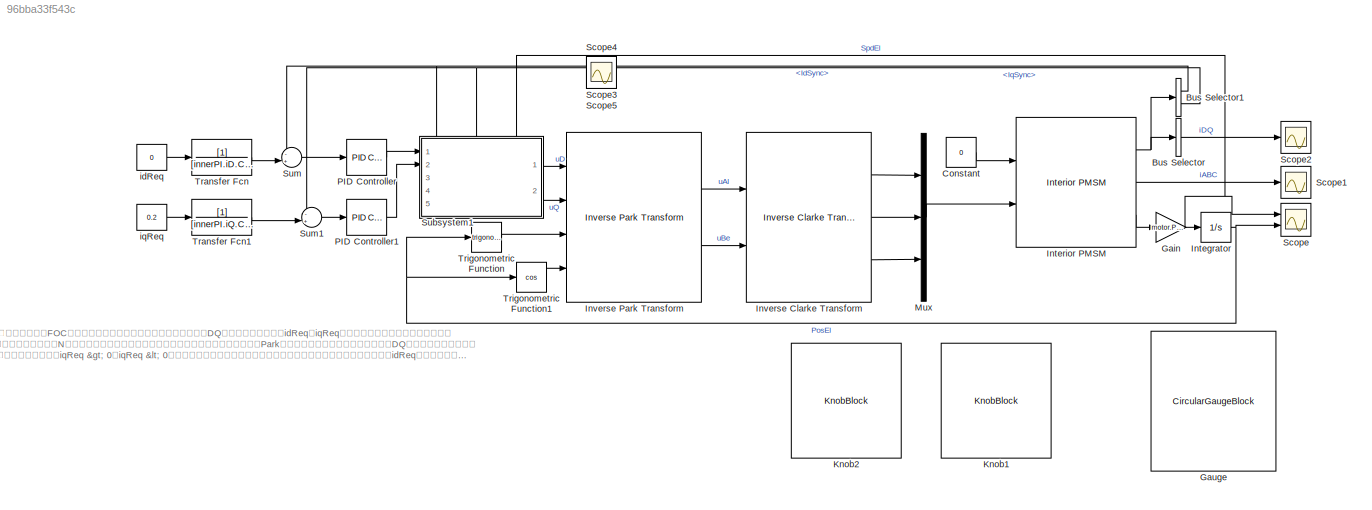
MODEL slx_96bba33f543c
KIND model
CONFIG AbsTol = auto
CONFIG EnableMultiTasking = off
CONFIG FixedStep = Ts
CONFIG InitFcn = FOC_basic;
CONFIG MaxStep = 0.0005
CONFIG MinStep = auto
CONFIG RelTol = 1e-3
CONFIG SampleTimeConstraint = Unconstrained
CONFIG SolverName = FixedStepAuto
CONFIG StartTime = 0.0
CONFIG StopTime = 1
BLOCK [BusSelector] Bus Selector
  OutputAsBus = on
  OutputSignals = IdSync,IqSync
  Ports = [1, 1]
BLOCK [BusSelector] Bus Selector1
  OutputSignals = IdSync,IqSync
  Ports = [1, 2]
BLOCK [Constant] Constant
  Value = 0
BLOCK [Gain] Gain
  Gain = motor.Prs
BLOCK [CircularGaugeBlock] Gauge
  ScaleMax = 3.14
  ScaleMin = -3.14
  TickInterval = 1.57
BLOCK [Integrator] Integrator
  Ports = [1, 1]
  WrapState = on
BLOCK [Reference] Interior PMSM  REF=autolibpmsminterior/Interior PMSM
  Ports = [2, 3]
  SourceBlock = autolibpmsminterior/Interior PMSM
  SourceProductBaseCode = PW,MT,UV,VE,VP
  SourceType = Interior PMSM
BLOCK [Reference] Inverse Clarke Transform  REF=mcbcontrolslib/Inverse Clarke Transform
  Ports = [2, 3]
  SourceBlock = mcbcontrolslib/Inverse Clarke Transform
  SourceProductBaseCode = MT
  SourceType = Inverse Clarke Transform
BLOCK [Reference] Inverse Park Transform  REF=mcbcontrolslib/Inverse Park Transform
  Ports = [4, 2]
  SourceBlock = mcbcontrolslib/Inverse Park Transform
  SourceProductBaseCode = MT
  SourceType = Inverse Park Transform
BLOCK [KnobBlock] Knob1
  ScaleMax = 1
  ScaleMin = -1
BLOCK [KnobBlock] Knob2
  ScaleMax = 1
  ScaleMin = -1
BLOCK [Mux] Mux
  DisplayOption = bar
  Inputs = 3
  Ports = [3, 1]
BLOCK [Reference] PID Controller  REF=pid_lib/PID Controller
  Ports = [1, 1]
  SourceBlock = pid_lib/PID Controller
  SourceProductBaseCode = SL
  SourceType = PID 1dof
BLOCK [Reference] PID Controller1  REF=pid_lib/PID Controller
  Ports = [1, 1]
  SourceBlock = pid_lib/PID Controller
  SourceProductBaseCode = SL
  SourceType = PID 1dof
BLOCK [Scope] Scope
  Floating = off
  NumInputPorts = 2
  Ports = [2]
  ScopeSpecificationString = Simulink.scopes.TimeScopeBlockCfg('CurrentConfiguration', extmgr.ConfigurationSet(extmgr.Configuration('Core','General UI',true),extmgr.Configuration('Core','Source UI',true),extmgr.Configuration('Sources','WiredSimulink',true),extmgr.Configuration('Visuals','Time Domain',true,'SerializedDisplays',{struct('MinYLimReal','-0.67157','MaxYLimReal','6.04411','YLabelReal','','MinYLimMag','0.00000','MaxY...<+2038ch>
BLOCK [Scope] Scope1
  Floating = off
  NumInputPorts = 1
  Ports = [1]
  ScopeSpecificationString = Simulink.scopes.TimeScopeBlockCfg('CurrentConfiguration', extmgr.ConfigurationSet(extmgr.Configuration('Core','General UI',true),extmgr.Configuration('Core','Source UI',true),extmgr.Configuration('Sources','WiredSimulink',true,'DataLoggingVariableName','ScopeData1'),extmgr.Configuration('Visuals','Time Domain',true,'SerializedDisplays',{struct('MinYLimReal','-0.25294','MaxYLimReal','0.25338','YLab...<+1454ch>
BLOCK [Scope] Scope2
  Floating = off
  NumInputPorts = 1
  Ports = [1]
  ScopeSpecificationString = Simulink.scopes.TimeScopeBlockCfg('CurrentConfiguration', extmgr.ConfigurationSet(extmgr.Configuration('Core','General UI',true),extmgr.Configuration('Core','Source UI',true),extmgr.Configuration('Sources','WiredSimulink',true,'DataLoggingVariableName','ScopeData2'),extmgr.Configuration('Visuals','Time Domain',true,'SerializedDisplays',{struct('MinYLimReal','-0.025','MaxYLimReal','0.225','YLabelRe...<+1430ch>
BLOCK [Scope] Scope3
  Floating = off
  IOType = viewer
  NumInputPorts = 1
  Ports = []
  ScopeSpecificationString = Simulink.scopes.TimeScopeBlockCfg('CurrentConfiguration', extmgr.ConfigurationSet(extmgr.Configuration('Core','General UI',true),extmgr.Configuration('Core','Source UI',true),extmgr.Configuration('Sources','WiredSimulink',true,'DataLoggingVariableName','ScopeData1'),extmgr.Configuration('Visuals','Time Domain',true,'SerializedDisplays',{struct('MinYLimReal','-0.02129','MaxYLimReal','0.18359','YLab...<+1685ch>
BLOCK [Scope] Scope4
  Floating = off
  IOType = viewer
  NumInputPorts = 1
  Ports = []
  ScopeSpecificationString = Simulink.scopes.TimeScopeBlockCfg('CurrentConfiguration', extmgr.ConfigurationSet(extmgr.Configuration('Core','General UI',true),extmgr.Configuration('Core','Source UI',true),extmgr.Configuration('Sources','WiredSimulink',true,'DataLoggingVariableName','ScopeData2'),extmgr.Configuration('Visuals','Time Domain',true,'SerializedDisplays',{struct('MinYLimReal','-0.16623','MaxYLimReal','0.16623','YLab...<+1357ch>
BLOCK [Scope] Scope5
  Floating = off
  IOType = viewer
  NumInputPorts = 1
  Ports = []
  ScopeSpecificationString = Simulink.scopes.TimeScopeBlockCfg('CurrentConfiguration', extmgr.ConfigurationSet(extmgr.Configuration('Core','General UI',true),extmgr.Configuration('Core','Source UI',true),extmgr.Configuration('Sources','WiredSimulink',true,'DataLoggingVariableName','ScopeData3'),extmgr.Configuration('Visuals','Time Domain',true,'SerializedDisplays',{struct('MinYLimReal','-0.20389','MaxYLimReal','0.20389','YLab...<+1487ch>
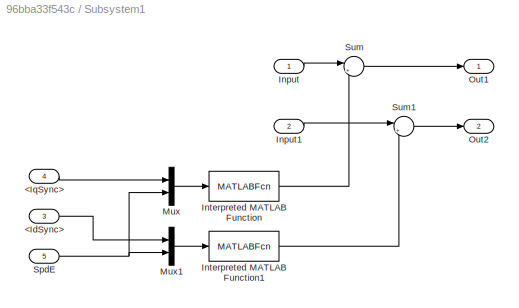
BLOCK [SubSystem] Subsystem1
  PortSchema = {"entries":[{"content":{"sides":[{"content":{"connectorIds":["In1","In2"]},"type":"ConnectorPlacement.EquallySpacedRectSide","uuid":"da513fce-1bba-488f-9066-1c6e94016250"},{"content":{"connectorIds":["Out1","Out2"],"side":"RIGHT"},"type":"ConnectorPlacement.EquallySpacedRectSide","uuid":"eadffa07-b25a-47cd-9c66-7794e561c7b0"},{"content":{"connectorIds":["In3","In4","In5"],"side":"TOP"},"type":"Con...<+414ch>
  Ports = [5, 2]
  RequestExecContextInheritance = off
BLOCK [Inport] Subsystem1/<IdSync>
  Port = 3
BLOCK [Inport] Subsystem1/<IqSync>
  Port = 4
BLOCK [Inport] Subsystem1/Input
BLOCK [Inport] Subsystem1/Input1
  Port = 2
BLOCK [MATLABFcn] Subsystem1/Interpreted MATLAB Function
  MATLABFcn = u(1)*u(2)*motor.Lq
  Ports = [1, 1]
BLOCK [MATLABFcn] Subsystem1/Interpreted MATLAB Function1
  MATLABFcn = u(2)*(motor.Flux + motor.Ld*u(1))
  Ports = [1, 1]
BLOCK [Mux] Subsystem1/Mux
  DisplayOption = bar
  Inputs = 2
  Ports = [2, 1]
BLOCK [Mux] Subsystem1/Mux1
  DisplayOption = bar
  Inputs = 2
  Ports = [2, 1]
BLOCK [Outport] Subsystem1/Out1
BLOCK [Outport] Subsystem1/Out2
  Port = 2
BLOCK [Inport] Subsystem1/SpdE
  Port = 5
BLOCK [Sum] Subsystem1/Sum
  Inputs = |+-
  Ports = [2, 1]
BLOCK [Sum] Subsystem1/Sum1
  Inputs = |++
  Ports = [2, 1]
BLOCK [Sum] Sum
  Inputs = -+|
  Ports = [2, 1]
BLOCK [Sum] Sum1
  Inputs = -+|
  Ports = [2, 1]
BLOCK [TransferFcn] Transfer Fcn
  Denominator = [innerPI.iD.Continuous.Kzc 1]
BLOCK [TransferFcn] Transfer Fcn1
  Denominator = [innerPI.iQ.Continuous.Kzc 1]
BLOCK [Trigonometry] Trigonometric Function
  Ports = [1, 1]
BLOCK [Trigonometry] Trigonometric Function1
  Operator = cos
  Ports = [1, 1]
BLOCK [Constant] idReq
  Value = 0
BLOCK [Constant] iqReq
  Value = 0.2
ANNOTATION (root): 本模型用于展示FOC的 电流控制 ：通过左侧的两个个旋钮可以控制DQ坐标系中的期望电流idReq和iqReq，表盘可以显示转子电角度的位置。 本模型中，会将转子永磁体N极方向相对于静止坐标系的角度（即转子电角度）实时反馈到逆Park变换中去，这样操作后 转子磁极便与DQ坐标系绑定在一起 了。 在这种情况下，只有 保证iqReq > 0或iqReq < 0（产生电磁转矩） ，转子便会转动起来，转动方向与电磁转矩方向有关； idReq控制的是电机的磁链 。通过合理的算法控制idReq和iqReq便可实现对电机转矩和速度的控制。
NET Bus Selector1:1 -> Subsystem1:3, Sum:1
NET Bus Selector1:2 -> Subsystem1:4, Sum1:1
LINE Bus Selector:1 -> Scope2:1
LINE Constant:1 -> Interior PMSM:1
NET Gain:1 -> Integrator:1, Scope:1, Subsystem1:5
NET Integrator:1 -> Scope:2, Trigonometric Function1:1, Trigonometric Function:1
NET Interior PMSM:1 -> Bus Selector1:1, Bus Selector:1
LINE Interior PMSM:2 -> Scope1:1
LINE Interior PMSM:3 -> Gain:1
LINE Inverse Clarke Transform:1 -> Mux:1
LINE Inverse Clarke Transform:2 -> Mux:2
LINE Inverse Clarke Transform:3 -> Mux:3
LINE Inverse Park Transform:1 -> Inverse Clarke Transform:1
LINE Inverse Park Transform:2 -> Inverse Clarke Transform:2
LINE Mux:1 -> Interior PMSM:2
LINE PID Controller1:1 -> Subsystem1:2
LINE PID Controller:1 -> Subsystem1:1
LINE Subsystem1/<IdSync>:1 -> Subsystem1/Mux1:1
LINE Subsystem1/<IqSync>:1 -> Subsystem1/Mux:1
LINE Subsystem1/Input1:1 -> Subsystem1/Sum1:1
LINE Subsystem1/Input:1 -> Subsystem1/Sum:1
LINE Subsystem1/Interpreted MATLAB Function1:1 -> Subsystem1/Sum1:2
LINE Subsystem1/Interpreted MATLAB Function:1 -> Subsystem1/Sum:2
LINE Subsystem1/Mux1:1 -> Subsystem1/Interpreted MATLAB Function1:1
LINE Subsystem1/Mux:1 -> Subsystem1/Interpreted MATLAB Function:1
NET Subsystem1/SpdE:1 -> Subsystem1/Mux1:2, Subsystem1/Mux:2
LINE Subsystem1/Sum1:1 -> Subsystem1/Out2:1
LINE Subsystem1/Sum:1 -> Subsystem1/Out1:1
LINE Subsystem1:1 -> Inverse Park Transform:1
LINE Subsystem1:2 -> Inverse Park Transform:2
LINE Sum1:1 -> PID Controller1:1
LINE Sum:1 -> PID Controller:1
LINE Transfer Fcn1:1 -> Sum1:2
LINE Transfer Fcn:1 -> Sum:2
LINE Trigonometric Function1:1 -> Inverse Park Transform:4
LINE Trigonometric Function:1 -> Inverse Park Transform:3
LINE idReq:1 -> Transfer Fcn:1
LINE iqReq:1 -> Transfer Fcn1:1
note: NET lines group one-source signal fan-out (src -> all destinations, sorted); 1:1 wires keep LINE
